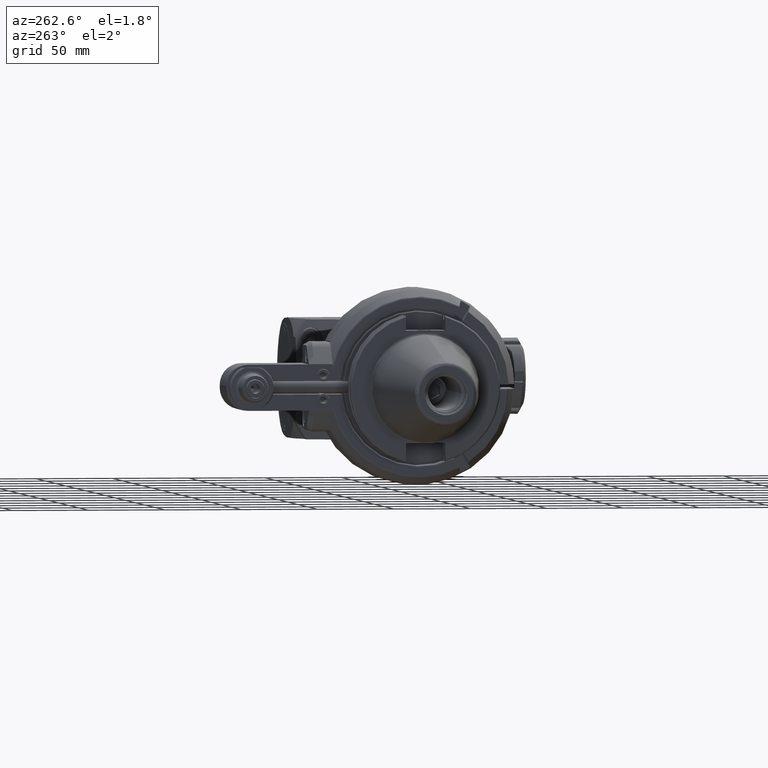
[diagram: clean part render]
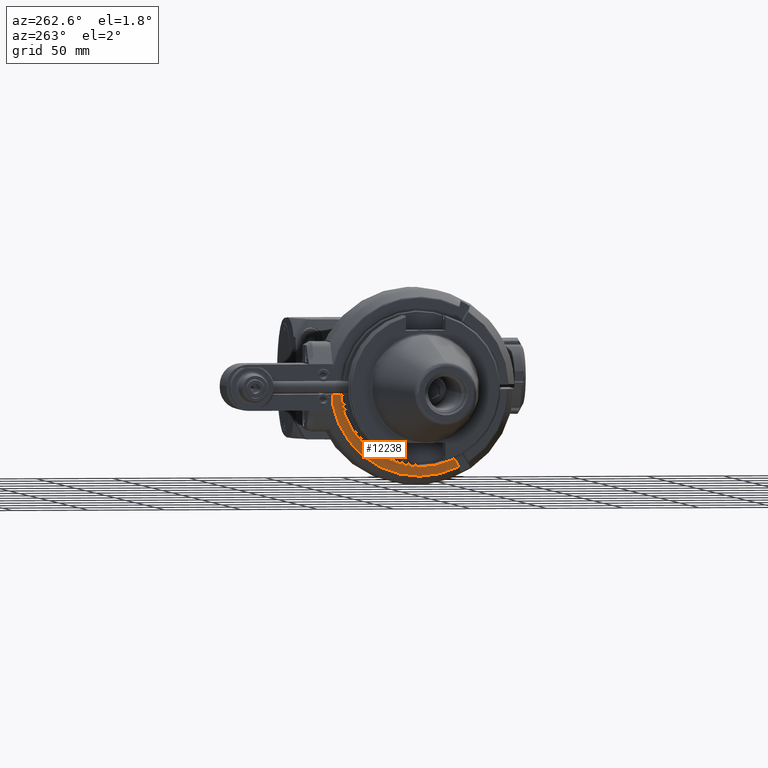
[diagram: same view with one face highlighted and labeled with its STEP entity id]
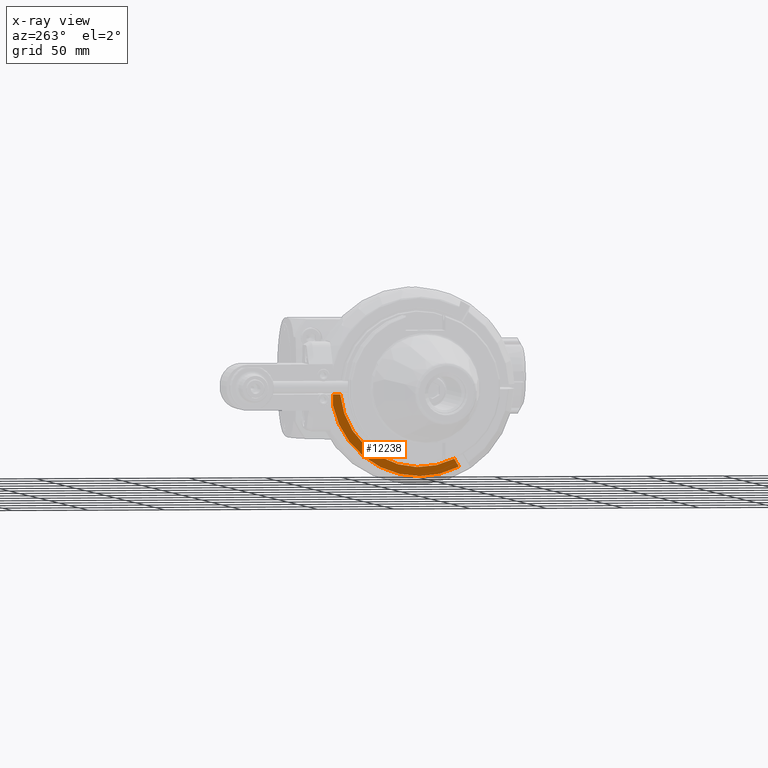
[diagram: x-ray of the same camera — body ghosted, the highlighted face saturated]
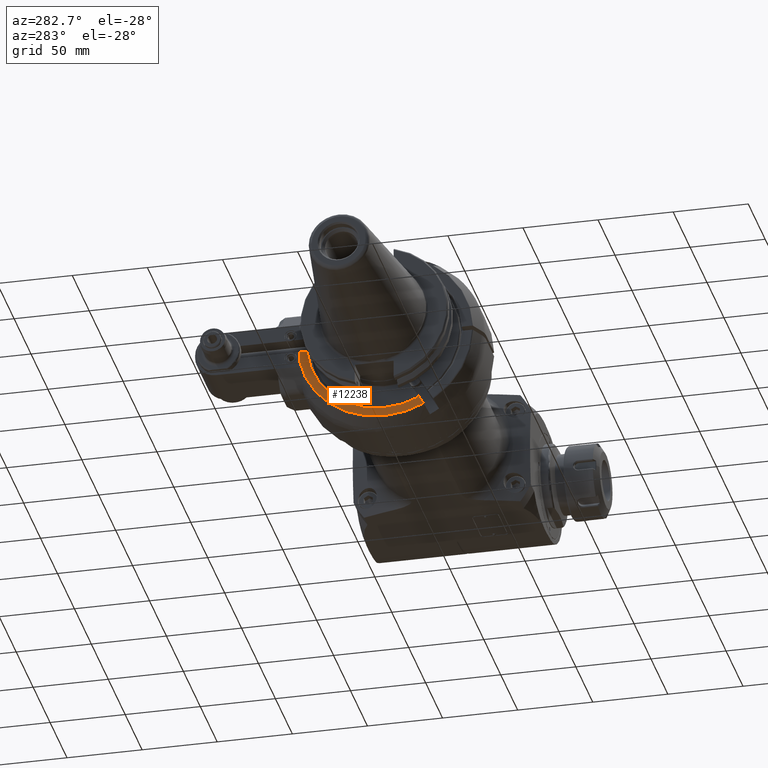
[diagram: same view with one face highlighted and labeled with its STEP entity id]
A machine part, auxiliary view. The second image highlights one B-rep face of the part: STEP entity #12238.
The next image is the same camera in x-ray: the body ghosted, the highlighted face saturated — about 0% of this face is hidden behind the body in this view.
A second angle (auxiliary view) of the same face is appended — the face is thin or edge-on in the first view.
In plain terms, the highlighted planar face has unit normal (1, -0, -0).
Its self-contained STEP definition (entity closure, byte-faithful):
#810=CIRCLE('',#13133,57.86292973919);
#811=CIRCLE('',#13135,52.);
#1329=FACE_OUTER_BOUND('',#2007,.T.);
#2007=EDGE_LOOP('',(#8233,#8234,#8235,#8236,#8237));
#2974=LINE('',#18096,#3922);
#2975=LINE('',#18122,#3923);
#2976=LINE('',#18123,#3924);
#3922=VECTOR('',#14416,5.87448467440678);
#3923=VECTOR('',#14425,4.945077453972);
#3924=VECTOR('',#14426,6.794075349613);
#4914=VERTEX_POINT('',#18084);
#4915=VERTEX_POINT('',#18095);
#4916=VERTEX_POINT('',#18106);
#4917=VERTEX_POINT('',#18119);
#4918=VERTEX_POINT('',#18121);
#6278=EDGE_CURVE('',#4915,#4914,#2974,.T.);
#6280=EDGE_CURVE('',#4916,#4915,#810,.T.);
#6282=EDGE_CURVE('',#4914,#4917,#811,.T.);
#6283=EDGE_CURVE('',#4918,#4917,#2975,.T.);
#6284=EDGE_CURVE('',#4918,#4916,#2976,.T.);
#8233=ORIENTED_EDGE('',*,*,#6282,.T.);
#8234=ORIENTED_EDGE('',*,*,#6283,.F.);
#8235=ORIENTED_EDGE('',*,*,#6284,.T.);
#8236=ORIENTED_EDGE('',*,*,#6280,.T.);
#8237=ORIENTED_EDGE('',*,*,#6278,.T.);
#11907=PLANE('',#13134);
#12238=ADVANCED_FACE('',(#1329),#11907,.F.);
#13133=AXIS2_PLACEMENT_3D('',#18107,#14419,#14420);
#13134=AXIS2_PLACEMENT_3D('',#18118,#14421,#14422);
#13135=AXIS2_PLACEMENT_3D('',#18120,#14423,#14424);
#14416=DIRECTION('',(0.,0.500000000009018,0.866025403779232));
#14419=DIRECTION('center_axis',(-1.,0.,0.));
#14420=DIRECTION('ref_axis',(0.,0.980766101125391,-0.195186717999198));
#14421=DIRECTION('center_axis',(1.,0.,0.));
#14422=DIRECTION('ref_axis',(0.,-1.,0.));
#14423=DIRECTION('center_axis',(1.,0.,0.));
#14424=DIRECTION('ref_axis',(0.,-0.440575961576081,-0.897715334658661));
#14425=DIRECTION('',(0.,-1.,0.));
#14426=DIRECTION('',(0.,0.,-1.));
#18084=CARTESIAN_POINT('',(-56.5,-22.9099500638076,-46.6811974947213));
#18095=CARTESIAN_POINT('',(-56.5,-25.8474006370011,-51.7690111498526));
#18096=CARTESIAN_POINT('',(-56.5,-25.84736182993,-51.76894393104));
#18106=CARTESIAN_POINT('',(-56.5,56.75,-11.29407534961));
#18107=CARTESIAN_POINT('Origin',(-56.5,0.,0.));
#18118=CARTESIAN_POINT('Origin',(-56.5,55.75,0.));
#18119=CARTESIAN_POINT('',(-56.5,51.80492254603,-4.5));
#18120=CARTESIAN_POINT('Origin',(-56.5,0.,0.));
#18121=CARTESIAN_POINT('',(-56.5,56.75,-4.5));
#18122=CARTESIAN_POINT('',(-56.5,56.75,-4.5));
#18123=CARTESIAN_POINT('',(-56.5,56.75,-4.5));